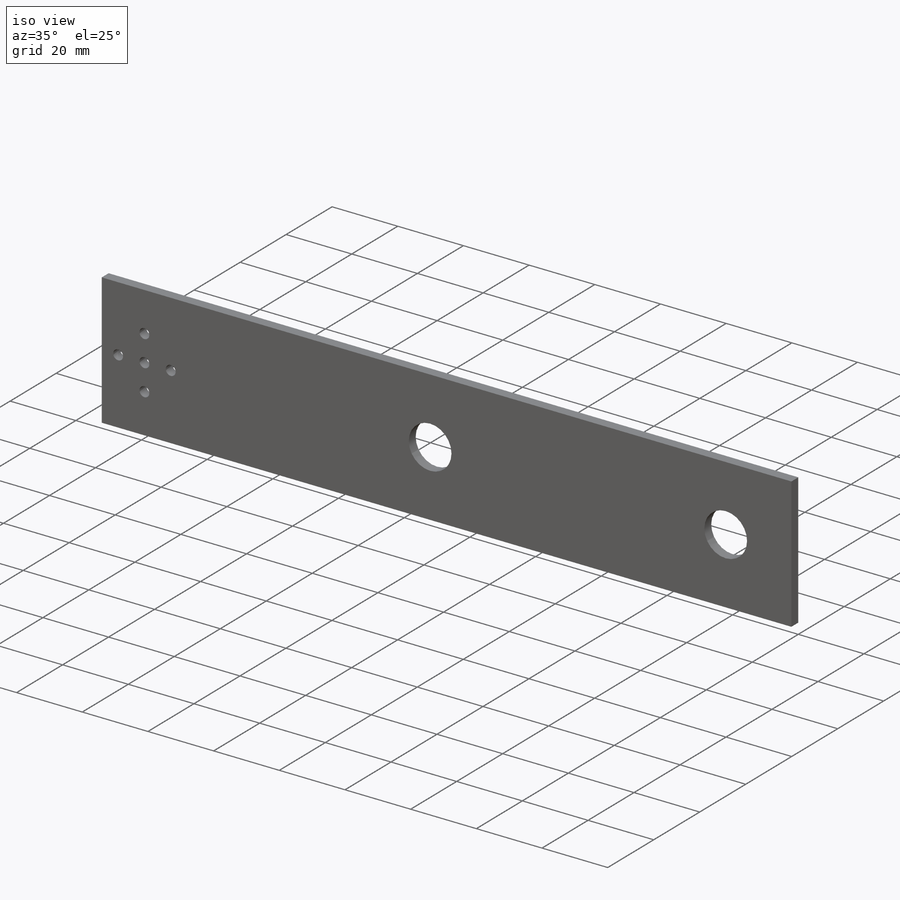
[diagram: iso view]
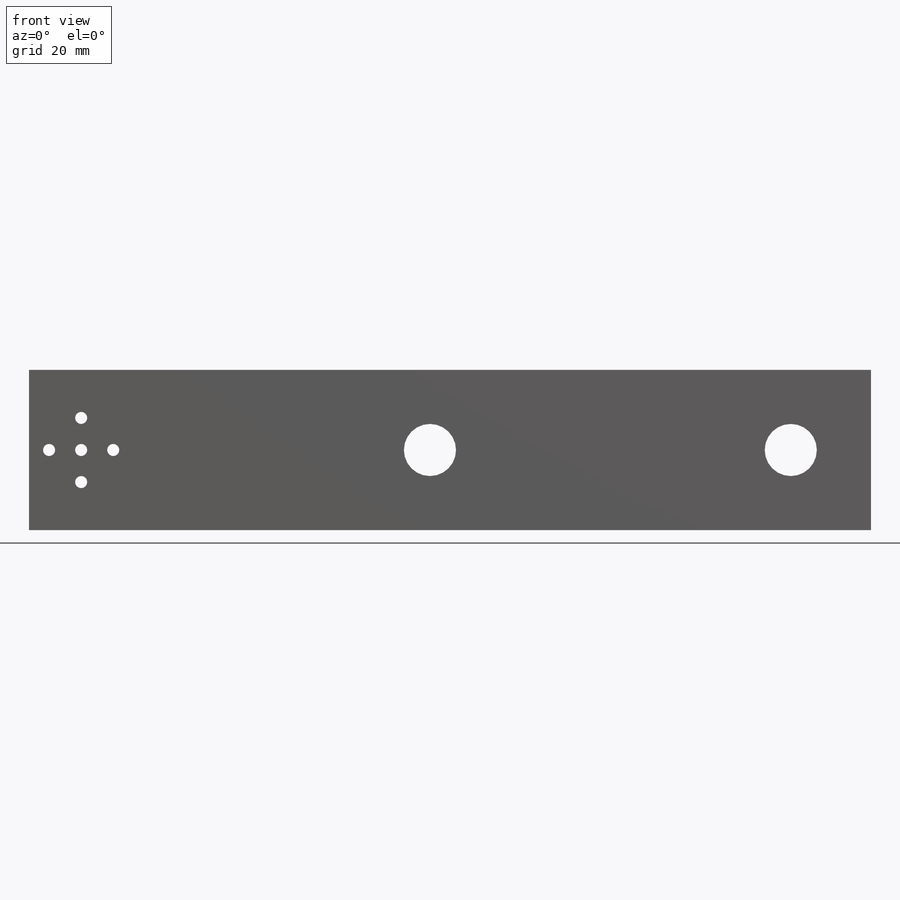
[diagram: front view]
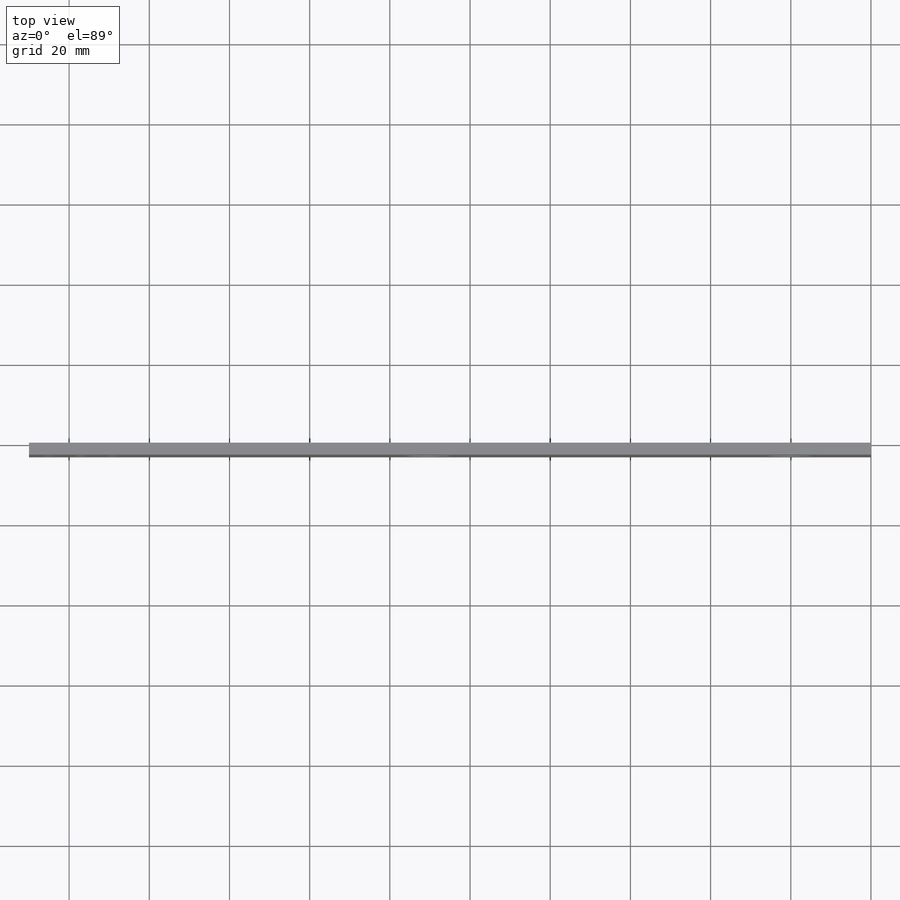
[diagram: top view]
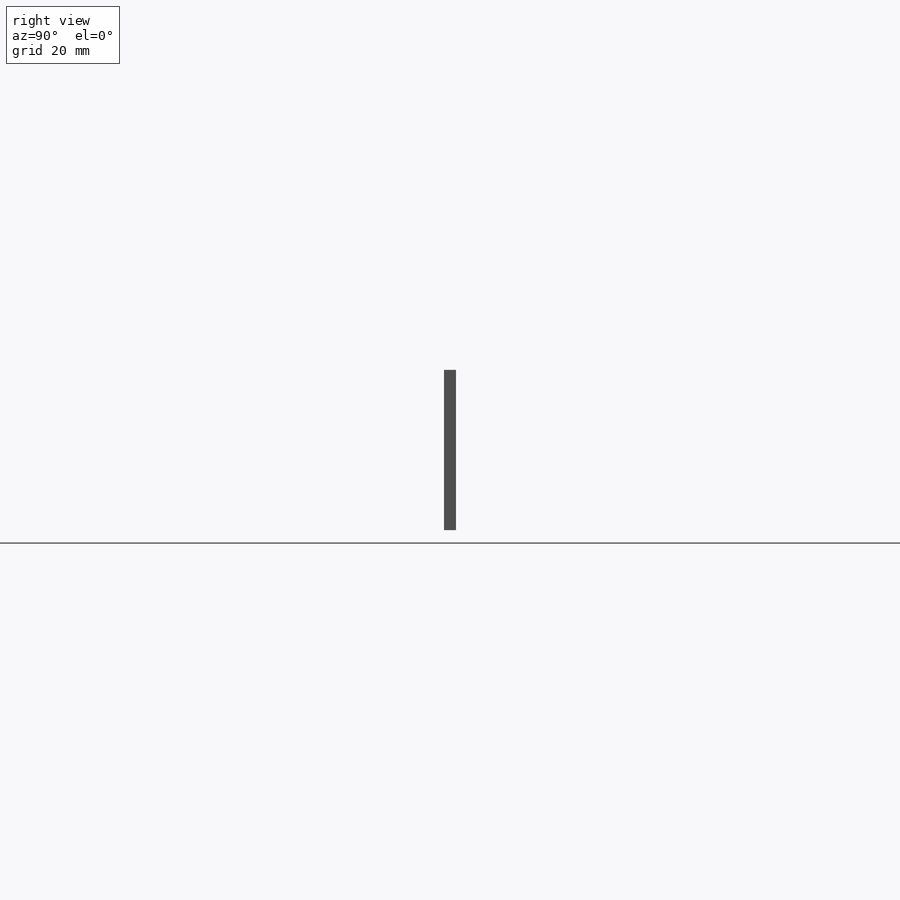
[diagram: right view]
SOLIDWORKS PART (.sldprt)
format: sldprt  version: not decoded by parser v0  size: 252,416 bytes
history: native  units: mm
features: sketch x5, hole x2, material x1, extrude x1 (+13 scaffold rows collapsed)
feature tree (22):
  scaffold x13  (default folders/planes/origin — collapsed)
  material  "1060 Alloy"
  sketch  "Sketch1"  dims[D2=210.0mm D3=40.0mm D1=4.0]
  extrude  "Boss-Extrude1"  Depth=3mm
  hole  "Ø3.0 (3) Diameter Hole2"  Diameter=3mm Depth=3mm
  sketch  "Sketch5"  dims[c1.D1=2.0mm c1.D2=~2.022196mm c2.D1=16.0mm c2.D2=8.0mm c2.D3=5.0mm c2.D4=8.0mm c2.D5=8.0mm c2.D6=8.0mm c2.D7=2.0mm]
  sketch  "Sketch4"  dims[hole-wizard template sketch: 60 standard entries collapsed; hole parameters kept: c18.Thru Hole Depth=3.0mm]
  hole  "Ø13.0 (13) Diameter Hole1"  Diameter=13mm Depth=3mm
  sketch  "Sketch7"  dims[D1=100.0mm D2=20.0mm D3=20.0mm D4=190.0mm]
  sketch  "Sketch6"  dims[hole-wizard template sketch: 59 standard entries collapsed; hole parameters kept: c18.Thru Hole Dia.=13.0mm c18.Thru Hole Depth=3.0mm]
decode coverage: 8 of 8 modeling features carry decoded parameters
note: ~ marks probable driven/reference dimensions
note: suppression state not decoded; provenance and decode notes live in map.json
